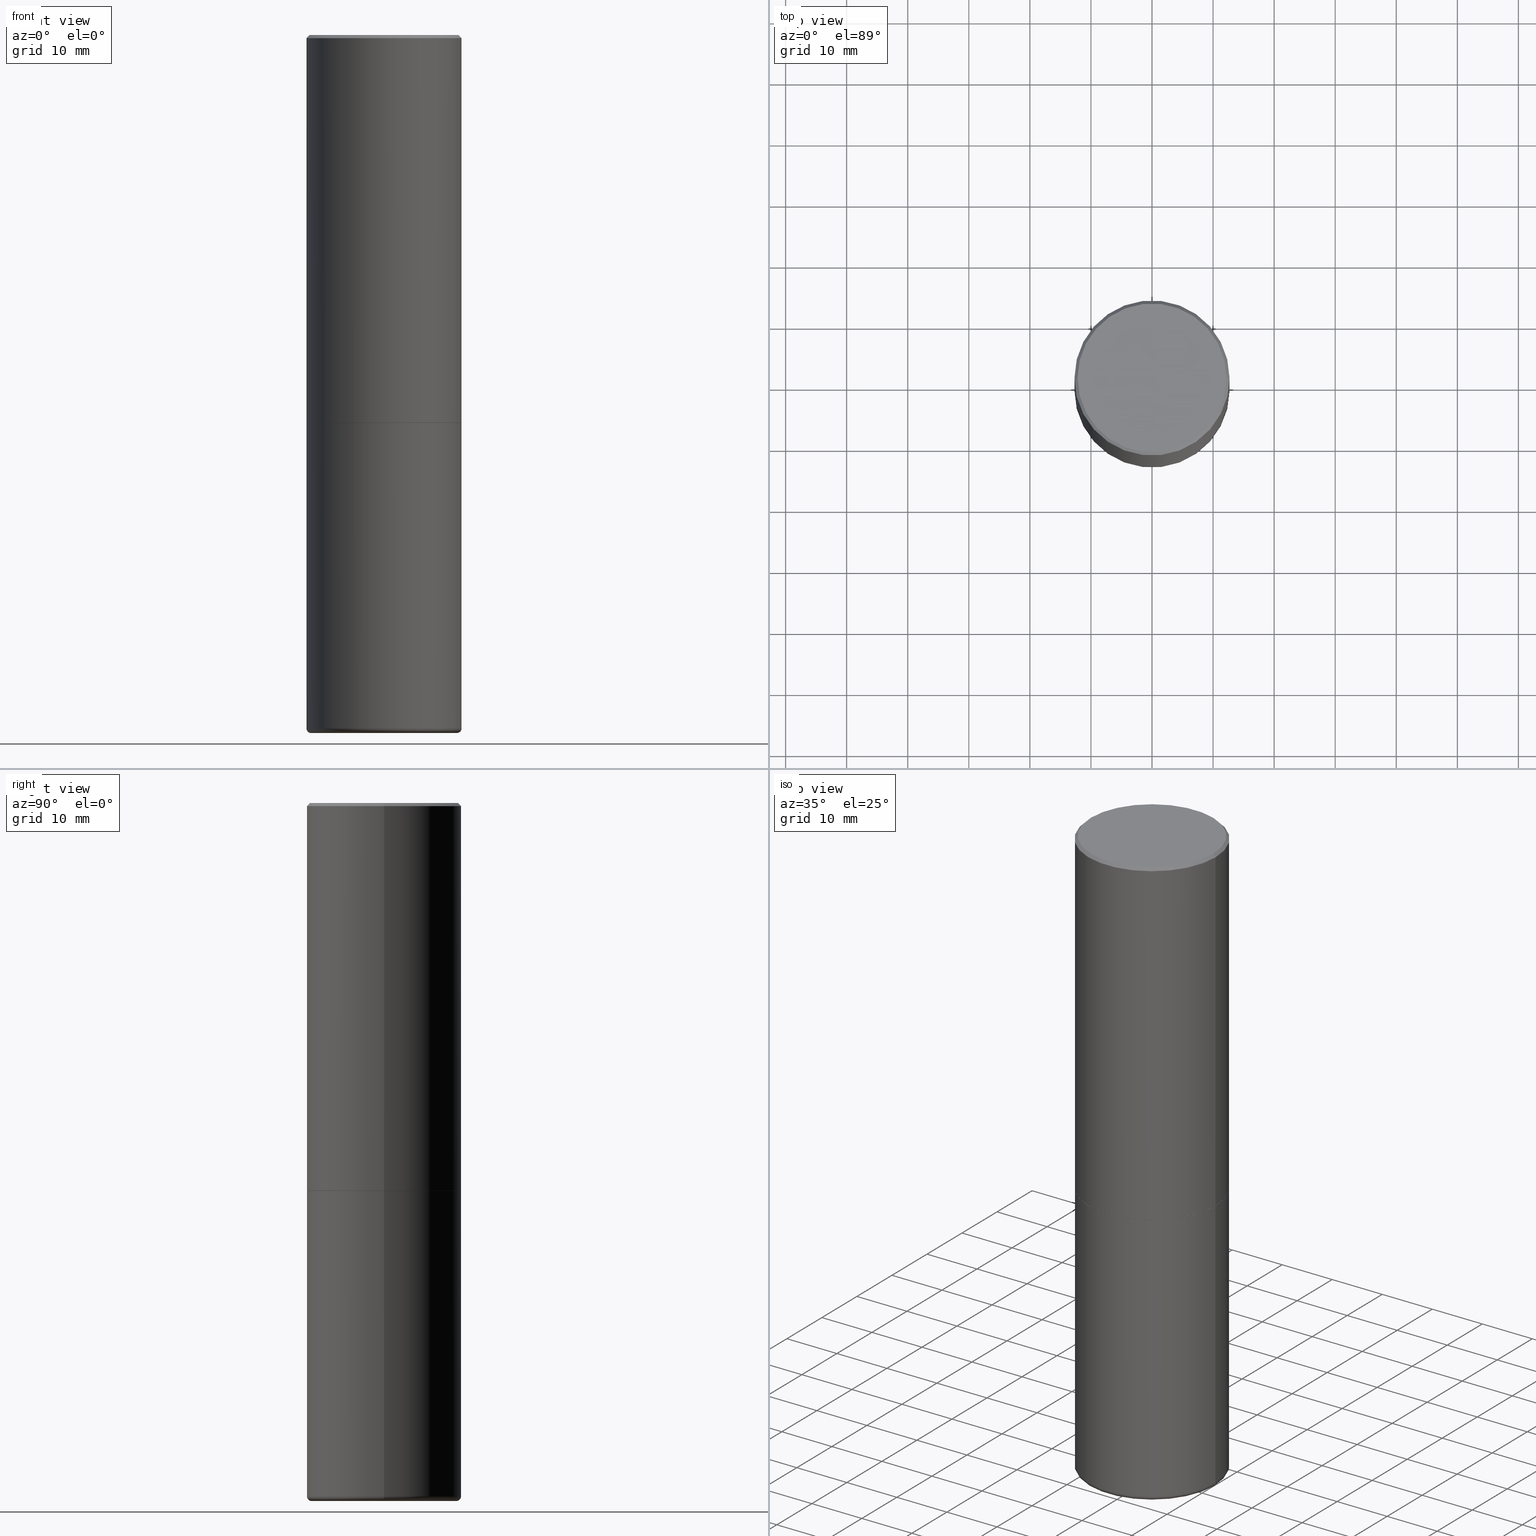
[diagram: canonical four-view strip — front | top / right | iso, engineering-drawing reading convention]
A machine part, canonical four-view strip (front | top / right | iso — engineering-drawing reading convention). The complete STEP part file that produces these views, byte-faithful:
ISO-10303-21;
HEADER;
FILE_DESCRIPTION (( 'STEP AP203' ),
    '1' );
FILE_NAME ('37303.STEP',
    '2024-03-01T23:32:27',
    ( '' ),
    ( '' ),
    'SwSTEP 2.0',
    'SolidWorks 2023',
    '' );
FILE_SCHEMA (( 'CONFIG_CONTROL_DESIGN' ));
ENDSEC;

DATA;
#1 = CARTESIAN_POINT ( 'NONE',  ( -0.4999999999999999445, 3.421651712066269663E-15, -0.02000000000000010797 ) ) ;
#2 = CARTESIAN_POINT ( 'NONE',  ( 0.5000000000000000000, -1.222018468595099830E-14, -2.500000000000000000 ) ) ;
#3 = CIRCLE ( 'NONE', #129, 0.4989999999999999991 ) ;
#4 = CIRCLE ( 'NONE', #410, 0.4999999999999999445 ) ;
#5 = MANIFOLD_SOLID_BREP ( 'Body-Move/Copy2[2]', #162 ) ;
#6 = ORIENTED_EDGE ( 'NONE', *, *, #290, .T. ) ;
#7 = CC_DESIGN_PERSON_AND_ORGANIZATION_ASSIGNMENT ( #189, #221, ( #294 ) ) ;
#8 = CARTESIAN_POINT ( 'NONE',  ( -0.4700000000000000289, -1.221316153627502519E-14, -4.499999999999999112 ) ) ;
#9 = VERTEX_POINT ( 'NONE', #151 ) ;
#10 = DIRECTION ( 'NONE',  ( -2.445468806185136597E-29, 3.491481338843145583E-15, 1.000000000000000000 ) ) ;
#11 = ORIENTED_EDGE ( 'NONE', *, *, #324, .T. ) ;
#12 = DIRECTION ( 'NONE',  ( 1.000000000000000000, 0.000000000000000000, 0.000000000000000000 ) ) ;
#13 = EDGE_CURVE ( 'NONE', #9, #168, #374, .T. ) ;
#14 = ORIENTED_EDGE ( 'NONE', *, *, #83, .T. ) ;
#15 = DIRECTION ( 'NONE',  ( 1.000000000000000000, -6.982962677686267499E-15, 4.876176775795935793E-29 ) ) ;
#16 = VERTEX_POINT ( 'NONE', #315 ) ;
#17 = DIRECTION ( 'NONE',  ( 1.000000000000000000, -6.982962677686265922E-15, 4.876176775795935793E-29 ) ) ;
#18 = ORIENTED_EDGE ( 'NONE', *, *, #255, .F. ) ;
#19 = DIRECTION ( 'NONE',  ( -2.445468806185136597E-29, 3.491481338843145583E-15, 1.000000000000000000 ) ) ;
#20 = LINE ( 'NONE', #273, #54 ) ;
#21 = CIRCLE ( 'NONE', #169, 0.4989999999999999991 ) ;
#22 = AXIS2_PLACEMENT_3D ( 'NONE', #209, #140, #372 ) ;
#23 = EDGE_CURVE ( 'NONE', #16, #231, #401, .T. ) ;
#24 = CARTESIAN_POINT ( 'NONE',  ( 6.113672015462842613E-29, -8.728703347107864943E-15, -2.500000000000000000 ) ) ;
#25 = VERTEX_POINT ( 'NONE', #58 ) ;
#26 = PERSON_AND_ORGANIZATION ( #50, #116 ) ;
#27 = DIRECTION ( 'NONE',  ( 2.438088387897960049E-29, -3.491481338843145188E-15, -1.000000000000000000 ) ) ;
#28 = APPROVAL_STATUS ( 'not_yet_approved' ) ;
#29 = DIRECTION ( 'NONE',  ( 0.7071067811865455743, -7.319954787623248157E-15, -0.7071067811865493491 ) ) ;
#30 = AXIS2_PLACEMENT_3D ( 'NONE', #60, #101, #160 ) ;
#31 = AXIS2_PLACEMENT_3D ( 'NONE', #67, #288, #326 ) ;
#32 = DATE_AND_TIME ( #154, #100 ) ;
#33 = PERSON_AND_ORGANIZATION ( #50, #116 ) ;
#34 = CC_DESIGN_PERSON_AND_ORGANIZATION_ASSIGNMENT ( #149, #86, ( #294 ) ) ;
#35 = DIRECTION ( 'NONE',  ( -0.7071067811865455743, 2.468850131082236945E-15, -0.7071067811865493491 ) ) ;
#36 = DIRECTION ( 'NONE',  ( -1.000000000000000000, 6.982962677686265922E-15, -4.876176775795935793E-29 ) ) ;
#37 = EDGE_CURVE ( 'NONE', #337, #369, #205, .T. ) ;
#38 = FACE_OUTER_BOUND ( 'NONE', #243, .T. ) ;
#39 = VECTOR ( 'NONE', #174, 39.37007874015748143 ) ;
#40 = ORIENTED_EDGE ( 'NONE', *, *, #13, .T. ) ;
#41 = DIRECTION ( 'NONE',  ( 1.000000000000000000, -6.982962677686270655E-15, 0.000000000000000000 ) ) ;
#42 = ORIENTED_EDGE ( 'NONE', *, *, #83, .F. ) ;
#43 = ORIENTED_EDGE ( 'NONE', *, *, #127, .F. ) ;
#44 =( NAMED_UNIT ( * ) SI_UNIT ( $, .STERADIAN. ) SOLID_ANGLE_UNIT ( ) );
#45 = AXIS2_PLACEMENT_3D ( 'NONE', #245, #89, #248 ) ;
#46 = ORIENTED_EDGE ( 'NONE', *, *, #275, .F. ) ;
#47 = DIRECTION ( 'NONE',  ( 1.000000000000000000, -6.982962677686267499E-15, 4.876176775795935793E-29 ) ) ;
#48 = VERTEX_POINT ( 'NONE', #117 ) ;
#49 = DIRECTION ( 'NONE',  ( -2.445468806185136597E-29, 3.491481338843145583E-15, 1.000000000000000000 ) ) ;
#50 = PERSON ( 'UNSPECIFIED', 'UNSPECIFIED', 'UNSPECIFIED', ('UNSPECIFIED'), ('UNSPECIFIED'), ('UNSPECIFIED') ) ;
#51 = CARTESIAN_POINT ( 'NONE',  ( 1.093124556364756005E-28, -1.560692158462886037E-14, -4.469999999999999751 ) ) ;
#52 = DIRECTION ( 'NONE',  ( 1.000000000000000000, -6.982962677686266711E-15, 0.000000000000000000 ) ) ;
#53 = EDGE_LOOP ( 'NONE', ( #109, #111, #254, #113 ) ) ;
#54 = VECTOR ( 'NONE', #183, 39.37007874015748143 ) ;
#55 = APPROVAL_PERSON_ORGANIZATION ( #250, #135, #411 ) ;
#56 = DIRECTION ( 'NONE',  ( -2.445468806185136597E-29, 3.491481338843145583E-15, 1.000000000000000000 ) ) ;
#57 = EDGE_CURVE ( 'NONE', #25, #369, #309, .T. ) ;
#58 = CARTESIAN_POINT ( 'NONE',  ( -0.4999999999999998335, -1.205420790582835944E-14, -4.469999999999999751 ) ) ;
#59 = DATE_TIME_ROLE ( 'classification_date' ) ;
#60 = CARTESIAN_POINT ( 'NONE',  ( 0.000000000000000000, 0.000000000000000000, 0.000000000000000000 ) ) ;
#61 = AXIS2_PLACEMENT_3D ( 'NONE', #391, #289, #330 ) ;
#62 = VECTOR ( 'NONE', #35, 39.37007874015748854 ) ;
#63 = APPROVAL_DATE_TIME ( #319, #269 ) ;
#64 = ADVANCED_FACE ( 'NONE', ( #346 ), #246, .T. ) ;
#65 = AXIS2_PLACEMENT_3D ( 'NONE', #123, #216, #251 ) ;
#66 = DIRECTION ( 'NONE',  ( 1.000000000000000000, -6.982962677686266711E-15, 0.000000000000000000 ) ) ;
#67 = CARTESIAN_POINT ( 'NONE',  ( 1.093124556364756005E-28, -1.560692158462886037E-14, -4.469999999999999751 ) ) ;
#68 = CARTESIAN_POINT ( 'NONE',  ( 6.113672015462842613E-29, -8.728703347107864943E-15, -2.500000000000000000 ) ) ;
#69 = ORIENTED_EDGE ( 'NONE', *, *, #37, .T. ) ;
#70 = DIRECTION ( 'NONE',  ( 2.438088387897960049E-29, -3.491481338843145188E-15, -1.000000000000000000 ) ) ;
#71 = AXIS2_PLACEMENT_3D ( 'NONE', #78, #394, #241 ) ;
#72 = ORIENTED_EDGE ( 'NONE', *, *, #57, .F. ) ;
#73 = PLANE ( 'NONE',  #317 ) ;
#74 = ORIENTED_EDGE ( 'NONE', *, *, #197, .F. ) ;
#75 = ADVANCED_FACE ( 'NONE', ( #375 ), #91, .T. ) ;
#76 = FACE_OUTER_BOUND ( 'NONE', #296, .T. ) ;
#77 = EDGE_LOOP ( 'NONE', ( #14, #136, #266, #74 ) ) ;
#78 = CARTESIAN_POINT ( 'NONE',  ( -0.4700000000000000289, -1.226737072655638969E-14, -4.469999999999999751 ) ) ;
#79 = CONICAL_SURFACE ( 'NONE', #274, 0.4989999999999999991, 0.7853981633976873100 ) ;
#80 = AXIS2_PLACEMENT_3D ( 'NONE', #161, #291, #128 ) ;
#81 = EDGE_LOOP ( 'NONE', ( #167, #133 ) ) ;
#82 = CYLINDRICAL_SURFACE ( 'NONE', #344, 0.5000000000000001110 ) ;
#83 = EDGE_CURVE ( 'NONE', #168, #48, #409, .T. ) ;
#84 = DIRECTION ( 'NONE',  ( 2.445468806185136597E-29, -3.491481338843145583E-15, -1.000000000000000000 ) ) ;
#85 = ORIENTED_EDGE ( 'NONE', *, *, #260, .T. ) ;
#86 = PERSON_AND_ORGANIZATION_ROLE ( 'creator' ) ;
#87 = DIRECTION ( 'NONE',  ( 1.000000000000000000, -6.982962677686262766E-15, 0.000000000000000000 ) ) ;
#88 = CC_DESIGN_APPROVAL ( #269, ( #402 ) ) ;
#89 = DIRECTION ( 'NONE',  ( -2.445468806185136597E-29, 3.491481338843145583E-15, 1.000000000000000000 ) ) ;
#90 = DATE_AND_TIME ( #351, #177 ) ;
#91 = PLANE ( 'NONE',  #232 ) ;
#92 = DATE_TIME_ROLE ( 'creation_date' ) ;
#93 = AXIS2_PLACEMENT_3D ( 'NONE', #159, #70, #263 ) ;
#94 = CC_DESIGN_APPROVAL ( #135, ( #294 ) ) ;
#95 = ADVANCED_FACE ( 'NONE', ( #278 ), #79, .T. ) ;
#96 = FACE_OUTER_BOUND ( 'NONE', #398, .T. ) ;
#97 = CLOSED_SHELL ( 'NONE', ( #413, #179, #193, #228, #300, #75 ) ) ;
#98 = APPROVAL ( #28, 'UNSPECIFIED' ) ;
#99 = ADVANCED_BREP_SHAPE_REPRESENTATION ( '37303', ( #144, #5, #371 ), #268 ) ;
#100 = LOCAL_TIME ( 18, 32, 27.00000000000000000, #182 ) ;
#101 = DIRECTION ( 'NONE',  ( -2.445468806185136597E-29, 3.491481338843145583E-15, 1.000000000000000000 ) ) ;
#102 = DIRECTION ( 'NONE',  ( -2.445468806185136877E-29, 3.491481338843145188E-15, 1.000000000000000000 ) ) ;
#103 = ORIENTED_EDGE ( 'NONE', *, *, #255, .T. ) ;
#104 = CYLINDRICAL_SURFACE ( 'NONE', #30, 0.5000000000000000000 ) ;
#105 = ORIENTED_EDGE ( 'NONE', *, *, #13, .F. ) ;
#106 = TOROIDAL_SURFACE ( 'NONE', #286, 0.4700000000000000289, 0.02999999999999967970 ) ;
#107 = CARTESIAN_POINT ( 'NONE',  ( 0.5000000000000001110, -3.491481338843134539E-15, 2.438088387897968457E-29 ) ) ;
#108 = EDGE_CURVE ( 'NONE', #131, #337, #20, .T. ) ;
#109 = ORIENTED_EDGE ( 'NONE', *, *, #23, .F. ) ;
#110 = CARTESIAN_POINT ( 'NONE',  ( -0.5000000000000000000, -8.615098787067861728E-15, -2.500000000000000000 ) ) ;
#111 = ORIENTED_EDGE ( 'NONE', *, *, #114, .T. ) ;
#112 = PERSON_AND_ORGANIZATION ( #50, #116 ) ;
#113 = ORIENTED_EDGE ( 'NONE', *, *, #324, .F. ) ;
#114 = EDGE_CURVE ( 'NONE', #16, #264, #120, .T. ) ;
#115 = DIRECTION ( 'NONE',  ( -2.438088387897960049E-29, 3.491481338843145188E-15, 1.000000000000000000 ) ) ;
#116 = ORGANIZATION ( 'UNSPECIFIED', 'UNSPECIFIED', '' ) ;
#117 = CARTESIAN_POINT ( 'NONE',  ( -0.5000000000000002220, -8.448070674724393209E-16, -2.499000000000000110 ) ) ;
#118 = FACE_OUTER_BOUND ( 'NONE', #172, .T. ) ;
#119 = DIRECTION ( 'NONE',  ( 0.000000000000000000, 0.000000000000000000, 1.000000000000000000 ) ) ;
#120 = LINE ( 'NONE', #147, #287 ) ;
#121 = CARTESIAN_POINT ( 'NONE',  ( 6.111226546656657010E-29, -8.725211865769021935E-15, -2.499000000000000110 ) ) ;
#122 = COORDINATED_UNIVERSAL_TIME_OFFSET ( 5, 0, .BEHIND. ) ;
#123 = CARTESIAN_POINT ( 'NONE',  ( 4.890937612370299433E-31, -6.982962677686328587E-17, -0.02000000000000010797 ) ) ;
#124 = SECURITY_CLASSIFICATION_LEVEL ( 'unclassified' ) ;
#125 = LOCAL_TIME ( 18, 32, 27.00000000000000000, #122 ) ;
#126 = DIRECTION ( 'NONE',  ( -2.445468806185136597E-29, 3.491481338843145583E-15, 1.000000000000000000 ) ) ;
#127 = EDGE_CURVE ( 'NONE', #25, #131, #267, .T. ) ;
#128 = DIRECTION ( 'NONE',  ( 1.000000000000000000, -6.982962677686266711E-15, 4.878011538933549282E-29 ) ) ;
#129 = AXIS2_PLACEMENT_3D ( 'NONE', #226, #126, #361 ) ;
#130 = CARTESIAN_POINT ( 'NONE',  ( -0.5000000000000001110, 3.552713678800501718E-15, -2.459467545127453732E-29 ) ) ;
#131 = VERTEX_POINT ( 'NONE', #181 ) ;
#132 = PLANE ( 'NONE',  #93 ) ;
#133 = ORIENTED_EDGE ( 'NONE', *, *, #260, .F. ) ;
#134 = FACE_OUTER_BOUND ( 'NONE', #139, .T. ) ;
#135 = APPROVAL ( #284, 'UNSPECIFIED' ) ;
#136 = ORIENTED_EDGE ( 'NONE', *, *, #203, .T. ) ;
#137 = CARTESIAN_POINT ( 'NONE',  ( -0.4989999999999999991, -5.177796641316741831E-15, -2.500000000000000000 ) ) ;
#138 = TOROIDAL_SURFACE ( 'NONE', #392, 0.4700000000000000289, 0.02999999999999967970 ) ;
#139 = EDGE_LOOP ( 'NONE', ( #69, #293 ) ) ;
#140 = DIRECTION ( 'NONE',  ( -2.445468806185136597E-29, 3.491481338843145583E-15, 1.000000000000000000 ) ) ;
#141 = ORIENTED_EDGE ( 'NONE', *, *, #108, .T. ) ;
#142 = CYLINDRICAL_SURFACE ( 'NONE', #22, 0.5000000000000000000 ) ;
#143 = CARTESIAN_POINT ( 'NONE',  ( -0.5000000000000000000, 3.552713678800500929E-15, -2.459467545127452891E-29 ) ) ;
#144 = MANIFOLD_SOLID_BREP ( 'Body-Move/Copy2[1]', #97 ) ;
#145 = CARTESIAN_POINT ( 'NONE',  ( 4.890937612370299433E-31, -6.982962677686328587E-17, -0.02000000000000010797 ) ) ;
#146 = CC_DESIGN_SECURITY_CLASSIFICATION ( #402, ( #294 ) ) ;
#147 = CARTESIAN_POINT ( 'NONE',  ( 0.4999999999999999445, -3.500078625662628685E-15, -0.02000000000000010797 ) ) ;
#148 = CARTESIAN_POINT ( 'NONE',  ( 4.890937612370299433E-31, -6.982962677686328587E-17, -0.02000000000000010797 ) ) ;
#149 = PERSON_AND_ORGANIZATION ( #50, #116 ) ;
#150 = EDGE_CURVE ( 'NONE', #328, #264, #282, .T. ) ;
#151 = CARTESIAN_POINT ( 'NONE',  ( 0.4989999999999999991, -1.221320172327331228E-14, -2.500000000000000000 ) ) ;
#152 = PERSON_AND_ORGANIZATION_ROLE ( 'classification_officer' ) ;
#153 = CARTESIAN_POINT ( 'NONE',  ( 1.093124556364756005E-28, -1.560692158462886037E-14, -4.469999999999999751 ) ) ;
#154 = CALENDAR_DATE ( 2024, 1, 3 ) ;
#155 = CC_DESIGN_DATE_AND_TIME_ASSIGNMENT ( #32, #92, ( #224 ) ) ;
#156 = APPROVAL_ROLE ( '' ) ;
#157 = CIRCLE ( 'NONE', #80, 0.4800000000000000933 ) ;
#158 = UNCERTAINTY_MEASURE_WITH_UNIT (LENGTH_MEASURE( 1.000000000000000082E-05 ), #211, 'distance_accuracy_value', 'NONE');
#159 = CARTESIAN_POINT ( 'NONE',  ( 6.113672015462842613E-29, -8.728703347107864943E-15, -2.500000000000000000 ) ) ;
#160 = DIRECTION ( 'NONE',  ( 1.000000000000000000, -6.982962677686266711E-15, 4.876176775795935793E-29 ) ) ;
#161 = CARTESIAN_POINT ( 'NONE',  ( 3.549094808739746881E-45, -5.067166779293519988E-31, -1.451294246634139896E-16 ) ) ;
#162 = CLOSED_SHELL ( 'NONE', ( #320, #380, #64, #186, #355, #95, #405, #249 ) ) ;
#163 = LOCAL_TIME ( 18, 32, 27.00000000000000000, #190 ) ;
#164 = FACE_OUTER_BOUND ( 'NONE', #223, .T. ) ;
#165 = ORIENTED_EDGE ( 'NONE', *, *, #150, .F. ) ;
#166 = LINE ( 'NONE', #234, #62 ) ;
#167 = ORIENTED_EDGE ( 'NONE', *, *, #213, .F. ) ;
#168 = VERTEX_POINT ( 'NONE', #314 ) ;
#169 = AXIS2_PLACEMENT_3D ( 'NONE', #68, #10, #261 ) ;
#170 = APPLICATION_PROTOCOL_DEFINITION ( 'international standard', 'config_control_design', 1994, #342 ) ;
#171 = CC_DESIGN_PERSON_AND_ORGANIZATION_ASSIGNMENT ( #112, #239, ( #397 ) ) ;
#172 = EDGE_LOOP ( 'NONE', ( #270, #305, #11, #307 ) ) ;
#173 = DIRECTION ( 'NONE',  ( -2.445468806185136597E-29, 3.491481338843145583E-15, 1.000000000000000000 ) ) ;
#174 = DIRECTION ( 'NONE',  ( -2.445468806185136877E-29, 3.491481338843145188E-15, 1.000000000000000000 ) ) ;
#175 = DIRECTION ( 'NONE',  ( -2.445468806185136597E-29, 3.491481338843145583E-15, 1.000000000000000000 ) ) ;
#176 = DIRECTION ( 'NONE',  ( 1.000000000000000000, -6.982962677686269866E-15, 0.000000000000000000 ) ) ;
#177 = LOCAL_TIME ( 18, 32, 27.00000000000000000, #321 ) ;
#178 = ORIENTED_EDGE ( 'NONE', *, *, #203, .F. ) ;
#179 = ADVANCED_FACE ( 'NONE', ( #379 ), #106, .T. ) ;
#180 = APPROVAL_STATUS ( 'not_yet_approved' ) ;
#181 = CARTESIAN_POINT ( 'NONE',  ( 0.4999999999999998335, -1.909840292347199373E-14, -4.469999999999999751 ) ) ;
#182 = COORDINATED_UNIVERSAL_TIME_OFFSET ( 5, 0, .BEHIND. ) ;
#183 = DIRECTION ( 'NONE',  ( -2.445468806185136877E-29, 3.491481338843145188E-15, 1.000000000000000000 ) ) ;
#184 = SHAPE_DEFINITION_REPRESENTATION ( #247, #99 ) ;
#185 = AXIS2_PLACEMENT_3D ( 'NONE', #196, #358, #36 ) ;
#186 = ADVANCED_FACE ( 'NONE', ( #118 ), #327, .T. ) ;
#187 = LINE ( 'NONE', #386, #357 ) ;
#188 = CIRCLE ( 'NONE', #71, 0.02999999999999967970 ) ;
#189 = PERSON_AND_ORGANIZATION ( #50, #116 ) ;
#190 = COORDINATED_UNIVERSAL_TIME_OFFSET ( 5, 0, .BEHIND. ) ;
#191 = AXIS2_PLACEMENT_3D ( 'NONE', #121, #341, #408 ) ;
#192 = LOCAL_TIME ( 18, 32, 27.00000000000000000, #313 ) ;
#193 = ADVANCED_FACE ( 'NONE', ( #134 ), #132, .F. ) ;
#194 = FACE_OUTER_BOUND ( 'NONE', #395, .T. ) ;
#195 = CARTESIAN_POINT ( 'NONE',  ( 1.100460962783311244E-28, -1.571166602479415374E-14, -4.499999999999999112 ) ) ;
#196 = CARTESIAN_POINT ( 'NONE',  ( 3.351822085289408337E-15, 0.4800000000000000933, -1.748475754976417141E-15 ) ) ;
#197 = EDGE_CURVE ( 'NONE', #168, #264, #297, .T. ) ;
#198 = ORIENTED_EDGE ( 'NONE', *, *, #219, .F. ) ;
#199 = CARTESIAN_POINT ( 'NONE',  ( -0.4800000000000000933, 3.386736898677838802E-15, -1.451294246634375569E-16 ) ) ;
#200 = EDGE_LOOP ( 'NONE', ( #103, #360, #335, #390 ) ) ;
#201 =( NAMED_UNIT ( * ) PLANE_ANGLE_UNIT ( ) SI_UNIT ( $, .RADIAN. ) );
#202 = ORIENTED_EDGE ( 'NONE', *, *, #23, .T. ) ;
#203 = EDGE_CURVE ( 'NONE', #48, #328, #388, .T. ) ;
#204 = ORIENTED_EDGE ( 'NONE', *, *, #219, .T. ) ;
#205 = CIRCLE ( 'NONE', #415, 0.5000000000000000000 ) ;
#206 =( LENGTH_UNIT ( ) NAMED_UNIT ( * ) SI_UNIT ( $, .METRE. ) );
#207 = CIRCLE ( 'NONE', #352, 0.5000000000000002220 ) ;
#208 = ORIENTED_EDGE ( 'NONE', *, *, #418, .T. ) ;
#209 = CARTESIAN_POINT ( 'NONE',  ( 0.000000000000000000, 0.000000000000000000, 0.000000000000000000 ) ) ;
#210 = DIRECTION ( 'NONE',  ( -1.000000000000000000, 6.982962677686266711E-15, 0.000000000000000000 ) ) ;
#211 =( CONVERSION_BASED_UNIT ( 'INCH', #403 ) LENGTH_UNIT ( ) NAMED_UNIT ( #353 ) );
#212 = CARTESIAN_POINT ( 'NONE',  ( 1.465753586672304986E-28, -1.048046773905407619E-14, -4.499999999999999112 ) ) ;
#213 = EDGE_CURVE ( 'NONE', #9, #367, #21, .T. ) ;
#214 = CALENDAR_DATE ( 2024, 1, 3 ) ;
#215 = CIRCLE ( 'NONE', #259, 0.02999999999999967970 ) ;
#216 = DIRECTION ( 'NONE',  ( -2.445468806185136597E-29, 3.491481338843145583E-15, 1.000000000000000000 ) ) ;
#217 = DIRECTION ( 'NONE',  ( 0.7071067811867165487, -2.468850131084027659E-15, 0.7071067811863784858 ) ) ;
#218 = DATE_AND_TIME ( #414, #192 ) ;
#219 = EDGE_CURVE ( 'NONE', #367, #48, #187, .T. ) ;
#220 = CARTESIAN_POINT ( 'NONE',  ( 0.4989999999999999991, -1.221320172327331228E-14, -2.500000000000000000 ) ) ;
#221 = PERSON_AND_ORGANIZATION_ROLE ( 'design_supplier' ) ;
#222 = APPROVAL_PERSON_ORGANIZATION ( #279, #269, #407 ) ;
#223 = EDGE_LOOP ( 'NONE', ( #178, #208, #298, #165 ) ) ;
#224 = PRODUCT_DEFINITION ( 'UNKNOWN', '', #294, #354 ) ;
#225 = CARTESIAN_POINT ( 'NONE',  ( 6.113672015462842613E-29, -8.728703347107864943E-15, -2.500000000000000000 ) ) ;
#226 = CARTESIAN_POINT ( 'NONE',  ( 6.113672015462842613E-29, -8.728703347107864943E-15, -2.500000000000000000 ) ) ;
#227 = CARTESIAN_POINT ( 'NONE',  ( 0.4999999999999999445, -3.500078625662628685E-15, -0.02000000000000010797 ) ) ;
#228 = ADVANCED_FACE ( 'NONE', ( #194 ), #104, .T. ) ;
#229 = EDGE_LOOP ( 'NONE', ( #334, #202 ) ) ;
#230 = DIRECTION ( 'NONE',  ( 1.000000000000000000, -6.982962677686270655E-15, 0.000000000000000000 ) ) ;
#231 = VERTEX_POINT ( 'NONE', #199 ) ;
#232 = AXIS2_PLACEMENT_3D ( 'NONE', #212, #27, #281 ) ;
#233 = AXIS2_PLACEMENT_3D ( 'NONE', #225, #417, #66 ) ;
#234 = CARTESIAN_POINT ( 'NONE',  ( -0.4999999999999999445, 3.421651712066269663E-15, -0.02000000000000010797 ) ) ;
#235 = ORIENTED_EDGE ( 'NONE', *, *, #213, .T. ) ;
#236 = CC_DESIGN_PERSON_AND_ORGANIZATION_ASSIGNMENT ( #26, #152, ( #402 ) ) ;
#237 = DIRECTION ( 'NONE',  ( -2.445468806185136597E-29, 3.491481338843145583E-15, 1.000000000000000000 ) ) ;
#238 = EDGE_LOOP ( 'NONE', ( #18, #271 ) ) ;
#239 = PERSON_AND_ORGANIZATION_ROLE ( 'design_owner' ) ;
#240 = VERTEX_POINT ( 'NONE', #8 ) ;
#241 = DIRECTION ( 'NONE',  ( -1.000000000000000000, 7.105427357601001859E-15, 0.000000000000000000 ) ) ;
#242 = CIRCLE ( 'NONE', #329, 0.4700000000000000289 ) ;
#243 = EDGE_LOOP ( 'NONE', ( #331, #377, #373, #43 ) ) ;
#244 = DIRECTION ( 'NONE',  ( 2.445468806185136597E-29, -3.491481338843145583E-15, -1.000000000000000000 ) ) ;
#245 = CARTESIAN_POINT ( 'NONE',  ( 3.549094808739746881E-45, -5.067166779293519988E-31, -1.451294246634139896E-16 ) ) ;
#246 = CONICAL_SURFACE ( 'NONE', #310, 0.4999999999999999445, 0.7853981633974456145 ) ;
#247 = PRODUCT_DEFINITION_SHAPE ( 'NONE', 'NONE',  #224 ) ;
#248 = DIRECTION ( 'NONE',  ( 1.000000000000000000, -6.982962677686266711E-15, 4.878011538933549282E-29 ) ) ;
#249 = ADVANCED_FACE ( 'NONE', ( #359 ), #265, .F. ) ;
#250 = PERSON_AND_ORGANIZATION ( #50, #116 ) ;
#251 = DIRECTION ( 'NONE',  ( 1.000000000000000000, -6.982962677686266711E-15, 0.000000000000000000 ) ) ;
#252 = CALENDAR_DATE ( 2024, 1, 3 ) ;
#253 = AXIS2_PLACEMENT_3D ( 'NONE', #340, #237, #15 ) ;
#254 = ORIENTED_EDGE ( 'NONE', *, *, #389, .T. ) ;
#255 = EDGE_CURVE ( 'NONE', #365, #240, #384, .T. ) ;
#256 = DIRECTION ( 'NONE',  ( -2.445468806185136597E-29, 3.491481338843145583E-15, 1.000000000000000000 ) ) ;
#257 = DIRECTION ( 'NONE',  ( -2.445468806185136877E-29, 3.491481338843145188E-15, 1.000000000000000000 ) ) ;
#258 = AXIS2_PLACEMENT_3D ( 'NONE', #318, #382, #230 ) ;
#259 = AXIS2_PLACEMENT_3D ( 'NONE', #311, #272, #306 ) ;
#260 = EDGE_CURVE ( 'NONE', #367, #9, #3, .T. ) ;
#261 = DIRECTION ( 'NONE',  ( 1.000000000000000000, -6.982962677686266711E-15, 0.000000000000000000 ) ) ;
#262 = ORIENTED_EDGE ( 'NONE', *, *, #57, .T. ) ;
#263 = DIRECTION ( 'NONE',  ( -1.000000000000000000, 6.982962677686265922E-15, -4.876176775795935793E-29 ) ) ;
#264 = VERTEX_POINT ( 'NONE', #227 ) ;
#265 = PLANE ( 'NONE',  #185 ) ;
#266 = ORIENTED_EDGE ( 'NONE', *, *, #389, .F. ) ;
#267 = CIRCLE ( 'NONE', #336, 0.5000000000000000000 ) ;
#268 =( GEOMETRIC_REPRESENTATION_CONTEXT ( 3 ) GLOBAL_UNCERTAINTY_ASSIGNED_CONTEXT ( ( #158 ) ) GLOBAL_UNIT_ASSIGNED_CONTEXT ( ( #211, #201, #44 ) ) REPRESENTATION_CONTEXT ( 'NONE', 'WORKASPACE' ) );
#269 = APPROVAL ( #180, 'UNSPECIFIED' ) ;
#270 = ORIENTED_EDGE ( 'NONE', *, *, #114, .F. ) ;
#271 = ORIENTED_EDGE ( 'NONE', *, *, #308, .F. ) ;
#272 = DIRECTION ( 'NONE',  ( -6.982962677686266711E-15, -1.000000000000000000, 3.491481338843145583E-15 ) ) ;
#273 = CARTESIAN_POINT ( 'NONE',  ( 0.5000000000000000000, -3.491481338843133355E-15, 2.438088387897967896E-29 ) ) ;
#274 = AXIS2_PLACEMENT_3D ( 'NONE', #350, #406, #348 ) ;
#275 = EDGE_CURVE ( 'NONE', #369, #337, #370, .T. ) ;
#276 = FACE_OUTER_BOUND ( 'NONE', #77, .T. ) ;
#277 = APPLICATION_CONTEXT ( 'configuration controlled 3d designs of mechanical parts and assemblies' ) ;
#278 = FACE_OUTER_BOUND ( 'NONE', #301, .T. ) ;
#279 = PERSON_AND_ORGANIZATION ( #50, #116 ) ;
#280 = PRODUCT_RELATED_PRODUCT_CATEGORY ( 'detail', '', ( #397 ) ) ;
#281 = DIRECTION ( 'NONE',  ( -1.000000000000000000, 6.982962677686265922E-15, -4.876176775795935793E-29 ) ) ;
#282 = CIRCLE ( 'NONE', #65, 0.4999999999999999445 ) ;
#283 = DIRECTION ( 'NONE',  ( -2.445468806185136597E-29, 3.491481338843145583E-15, 1.000000000000000000 ) ) ;
#284 = APPROVAL_STATUS ( 'not_yet_approved' ) ;
#285 = PERSON_AND_ORGANIZATION_ROLE ( 'creator' ) ;
#286 = AXIS2_PLACEMENT_3D ( 'NONE', #51, #175, #404 ) ;
#287 = VECTOR ( 'NONE', #29, 39.37007874015748854 ) ;
#288 = DIRECTION ( 'NONE',  ( -2.445468806185136597E-29, 3.491481338843145583E-15, 1.000000000000000000 ) ) ;
#289 = DIRECTION ( 'NONE',  ( -2.445468806185136597E-29, 3.491481338843145583E-15, 1.000000000000000000 ) ) ;
#290 = EDGE_CURVE ( 'NONE', #131, #25, #292, .T. ) ;
#291 = DIRECTION ( 'NONE',  ( -2.445468806185136597E-29, 3.491481338843145583E-15, 1.000000000000000000 ) ) ;
#292 = CIRCLE ( 'NONE', #31, 0.5000000000000000000 ) ;
#293 = ORIENTED_EDGE ( 'NONE', *, *, #275, .T. ) ;
#294 = PRODUCT_DEFINITION_FORMATION_WITH_SPECIFIED_SOURCE ( 'ANY', '', #397, .NOT_KNOWN. ) ;
#295 = CARTESIAN_POINT ( 'NONE',  ( 1.093124556364756005E-28, -1.560692158462886037E-14, -4.469999999999999751 ) ) ;
#296 = EDGE_LOOP ( 'NONE', ( #6, #262, #363, #387 ) ) ;
#297 = LINE ( 'NONE', #107, #343 ) ;
#298 = ORIENTED_EDGE ( 'NONE', *, *, #197, .T. ) ;
#299 = CARTESIAN_POINT ( 'NONE',  ( 0.000000000000000000, 0.000000000000000000, 0.000000000000000000 ) ) ;
#300 = ADVANCED_FACE ( 'NONE', ( #38 ), #138, .T. ) ;
#301 = EDGE_LOOP ( 'NONE', ( #198, #85, #40, #393 ) ) ;
#302 = AXIS2_PLACEMENT_3D ( 'NONE', #339, #244, #383 ) ;
#303 = CC_DESIGN_APPROVAL ( #98, ( #224 ) ) ;
#304 = MECHANICAL_CONTEXT ( 'NONE', #342, 'mechanical' ) ;
#305 = ORIENTED_EDGE ( 'NONE', *, *, #332, .F. ) ;
#306 = DIRECTION ( 'NONE',  ( 1.000000000000000000, -6.982962677686213068E-15, 0.000000000000000000 ) ) ;
#307 = ORIENTED_EDGE ( 'NONE', *, *, #150, .T. ) ;
#308 = EDGE_CURVE ( 'NONE', #240, #365, #242, .T. ) ;
#309 = LINE ( 'NONE', #143, #39 ) ;
#310 = AXIS2_PLACEMENT_3D ( 'NONE', #148, #84, #210 ) ;
#311 = CARTESIAN_POINT ( 'NONE',  ( 0.4700000000000000289, -1.888891404314141014E-14, -4.469999999999999751 ) ) ;
#312 = DIRECTION ( 'NONE',  ( 1.000000000000000000, -6.982962677686269077E-15, 0.000000000000000000 ) ) ;
#313 = COORDINATED_UNIVERSAL_TIME_OFFSET ( 5, 0, .BEHIND. ) ;
#314 = CARTESIAN_POINT ( 'NONE',  ( 0.5000000000000002220, -1.221669320461215845E-14, -2.499000000000000110 ) ) ;
#315 = CARTESIAN_POINT ( 'NONE',  ( 0.4800000000000000933, -3.396558832296482099E-15, -1.451294246633903978E-16 ) ) ;
#316 = PERSON_AND_ORGANIZATION ( #50, #116 ) ;
#317 = AXIS2_PLACEMENT_3D ( 'NONE', #24, #115, #17 ) ;
#318 = CARTESIAN_POINT ( 'NONE',  ( 1.100460962783311244E-28, -1.571166602479415374E-14, -4.499999999999999112 ) ) ;
#319 = DATE_AND_TIME ( #252, #163 ) ;
#320 = ADVANCED_FACE ( 'NONE', ( #96 ), #385, .T. ) ;
#321 = COORDINATED_UNIVERSAL_TIME_OFFSET ( 5, 0, .BEHIND. ) ;
#322 = VECTOR ( 'NONE', #217, 39.37007874015748143 ) ;
#323 = DIRECTION ( 'NONE',  ( -2.445468806185136597E-29, 3.491481338843145583E-15, 1.000000000000000000 ) ) ;
#324 = EDGE_CURVE ( 'NONE', #231, #328, #166, .T. ) ;
#325 = DIRECTION ( 'NONE',  ( -0.7071067811867165487, 7.493145998870964739E-15, 0.7071067811863784858 ) ) ;
#326 = DIRECTION ( 'NONE',  ( 1.000000000000000000, -6.982962677686262766E-15, 0.000000000000000000 ) ) ;
#327 = CONICAL_SURFACE ( 'NONE', #302, 0.4999999999999999445, 0.7853981633974456145 ) ;
#328 = VERTEX_POINT ( 'NONE', #1 ) ;
#329 = AXIS2_PLACEMENT_3D ( 'NONE', #195, #256, #41 ) ;
#330 = DIRECTION ( 'NONE',  ( 1.000000000000000000, -6.982962677686269077E-15, 0.000000000000000000 ) ) ;
#331 = ORIENTED_EDGE ( 'NONE', *, *, #362, .F. ) ;
#332 = EDGE_CURVE ( 'NONE', #231, #16, #157, .T. ) ;
#333 = CARTESIAN_POINT ( 'NONE',  ( 0.4700000000000000289, -1.899365848330670036E-14, -4.499999999999999112 ) ) ;
#334 = ORIENTED_EDGE ( 'NONE', *, *, #332, .T. ) ;
#335 = ORIENTED_EDGE ( 'NONE', *, *, #290, .F. ) ;
#336 = AXIS2_PLACEMENT_3D ( 'NONE', #153, #283, #87 ) ;
#337 = VERTEX_POINT ( 'NONE', #2 ) ;
#338 = CARTESIAN_POINT ( 'NONE',  ( 6.111226546656657010E-29, -8.725211865769021935E-15, -2.499000000000000110 ) ) ;
#339 = CARTESIAN_POINT ( 'NONE',  ( 4.890937612370299433E-31, -6.982962677686328587E-17, -0.02000000000000010797 ) ) ;
#340 = CARTESIAN_POINT ( 'NONE',  ( 0.000000000000000000, 0.000000000000000000, 0.000000000000000000 ) ) ;
#341 = DIRECTION ( 'NONE',  ( -2.445468806185136597E-29, 3.491481338843145583E-15, 1.000000000000000000 ) ) ;
#342 = APPLICATION_CONTEXT ( 'configuration controlled 3d designs of mechanical parts and assemblies' ) ;
#343 = VECTOR ( 'NONE', #257, 39.37007874015748143 ) ;
#344 = AXIS2_PLACEMENT_3D ( 'NONE', #399, #173, #47 ) ;
#345 = APPROVAL_DATE_TIME ( #349, #98 ) ;
#346 = FACE_OUTER_BOUND ( 'NONE', #53, .T. ) ;
#347 = CC_DESIGN_PERSON_AND_ORGANIZATION_ASSIGNMENT ( #33, #285, ( #224 ) ) ;
#348 = DIRECTION ( 'NONE',  ( 1.000000000000000000, -6.982962677686266711E-15, 0.000000000000000000 ) ) ;
#349 = DATE_AND_TIME ( #214, #125 ) ;
#350 = CARTESIAN_POINT ( 'NONE',  ( 6.113672015462842613E-29, -8.728703347107864943E-15, -2.500000000000000000 ) ) ;
#351 = CALENDAR_DATE ( 2024, 1, 3 ) ;
#352 = AXIS2_PLACEMENT_3D ( 'NONE', #338, #49, #176 ) ;
#353 = DIMENSIONAL_EXPONENTS ( 1.000000000000000000, 0.000000000000000000, 0.000000000000000000, 0.000000000000000000, 0.000000000000000000, 0.000000000000000000, 0.000000000000000000 ) ;
#354 = DESIGN_CONTEXT ( 'detailed design', #277, 'design' ) ;
#355 = ADVANCED_FACE ( 'NONE', ( #164 ), #364, .T. ) ;
#356 = DIRECTION ( 'NONE',  ( 1.000000000000000000, -6.982962677686266711E-15, 4.883557194083112901E-29 ) ) ;
#357 = VECTOR ( 'NONE', #325, 39.37007874015748143 ) ;
#358 = DIRECTION ( 'NONE',  ( 2.438088387897960049E-29, -3.491481338843145188E-15, -1.000000000000000000 ) ) ;
#359 = FACE_OUTER_BOUND ( 'NONE', #229, .T. ) ;
#360 = ORIENTED_EDGE ( 'NONE', *, *, #362, .T. ) ;
#361 = DIRECTION ( 'NONE',  ( 1.000000000000000000, -6.982962677686266711E-15, 0.000000000000000000 ) ) ;
#362 = EDGE_CURVE ( 'NONE', #240, #25, #188, .T. ) ;
#363 = ORIENTED_EDGE ( 'NONE', *, *, #37, .F. ) ;
#364 = CYLINDRICAL_SURFACE ( 'NONE', #253, 0.5000000000000001110 ) ;
#365 = VERTEX_POINT ( 'NONE', #333 ) ;
#366 = FACE_OUTER_BOUND ( 'NONE', #81, .T. ) ;
#367 = VERTEX_POINT ( 'NONE', #137 ) ;
#368 = APPLICATION_PROTOCOL_DEFINITION ( 'international standard', 'config_control_design', 1994, #277 ) ;
#369 = VERTEX_POINT ( 'NONE', #110 ) ;
#370 = CIRCLE ( 'NONE', #61, 0.5000000000000000000 ) ;
#371 = AXIS2_PLACEMENT_3D ( 'NONE', #299, #119, #12 ) ;
#372 = DIRECTION ( 'NONE',  ( 1.000000000000000000, -6.982962677686266711E-15, 4.876176775795935793E-29 ) ) ;
#373 = ORIENTED_EDGE ( 'NONE', *, *, #396, .T. ) ;
#374 = LINE ( 'NONE', #220, #322 ) ;
#375 = FACE_OUTER_BOUND ( 'NONE', #238, .T. ) ;
#376 = CC_DESIGN_DATE_AND_TIME_ASSIGNMENT ( #90, #59, ( #402 ) ) ;
#377 = ORIENTED_EDGE ( 'NONE', *, *, #308, .T. ) ;
#378 = APPROVAL_DATE_TIME ( #218, #135 ) ;
#379 = FACE_OUTER_BOUND ( 'NONE', #200, .T. ) ;
#380 = ADVANCED_FACE ( 'NONE', ( #276 ), #82, .T. ) ;
#381 = VECTOR ( 'NONE', #102, 39.37007874015748143 ) ;
#382 = DIRECTION ( 'NONE',  ( -2.445468806185136597E-29, 3.491481338843145583E-15, 1.000000000000000000 ) ) ;
#383 = DIRECTION ( 'NONE',  ( -1.000000000000000000, 6.982962677686266711E-15, 0.000000000000000000 ) ) ;
#384 = CIRCLE ( 'NONE', #258, 0.4700000000000000289 ) ;
#385 = CONICAL_SURFACE ( 'NONE', #233, 0.4989999999999999991, 0.7853981633976873100 ) ;
#386 = CARTESIAN_POINT ( 'NONE',  ( -0.4989999999999999991, -5.183095095664965021E-15, -2.500000000000000000 ) ) ;
#387 = ORIENTED_EDGE ( 'NONE', *, *, #108, .F. ) ;
#388 = LINE ( 'NONE', #130, #381 ) ;
#389 = EDGE_CURVE ( 'NONE', #264, #328, #4, .T. ) ;
#390 = ORIENTED_EDGE ( 'NONE', *, *, #396, .F. ) ;
#391 = CARTESIAN_POINT ( 'NONE',  ( 6.113672015462842613E-29, -8.728703347107864943E-15, -2.500000000000000000 ) ) ;
#392 = AXIS2_PLACEMENT_3D ( 'NONE', #295, #323, #356 ) ;
#393 = ORIENTED_EDGE ( 'NONE', *, *, #418, .F. ) ;
#394 = DIRECTION ( 'NONE',  ( 7.105427357601001859E-15, 1.000000000000000000, -3.491481338843145583E-15 ) ) ;
#395 = EDGE_LOOP ( 'NONE', ( #72, #400, #141, #46 ) ) ;
#396 = EDGE_CURVE ( 'NONE', #365, #131, #215, .T. ) ;
#397 = PRODUCT ( '37303', '37303', '', ( #304 ) ) ;
#398 = EDGE_LOOP ( 'NONE', ( #235, #204, #42, #105 ) ) ;
#399 = CARTESIAN_POINT ( 'NONE',  ( 0.000000000000000000, 0.000000000000000000, 0.000000000000000000 ) ) ;
#400 = ORIENTED_EDGE ( 'NONE', *, *, #127, .T. ) ;
#401 = CIRCLE ( 'NONE', #45, 0.4800000000000000933 ) ;
#402 = SECURITY_CLASSIFICATION ( '', '', #124 ) ;
#403 = LENGTH_MEASURE_WITH_UNIT ( LENGTH_MEASURE( 0.02539999999999999897 ), #206 );
#404 = DIRECTION ( 'NONE',  ( 1.000000000000000000, -6.982962677686266711E-15, 4.883557194083112901E-29 ) ) ;
#405 = ADVANCED_FACE ( 'NONE', ( #366 ), #73, .F. ) ;
#406 = DIRECTION ( 'NONE',  ( -2.445468806185136597E-29, 3.491481338843145583E-15, 1.000000000000000000 ) ) ;
#407 = APPROVAL_ROLE ( '' ) ;
#408 = DIRECTION ( 'NONE',  ( 1.000000000000000000, -6.982962677686269866E-15, 0.000000000000000000 ) ) ;
#409 = CIRCLE ( 'NONE', #191, 0.5000000000000002220 ) ;
#410 = AXIS2_PLACEMENT_3D ( 'NONE', #145, #19, #52 ) ;
#411 = APPROVAL_ROLE ( '' ) ;
#412 = CARTESIAN_POINT ( 'NONE',  ( 6.113672015462842613E-29, -8.728703347107864943E-15, -2.500000000000000000 ) ) ;
#413 = ADVANCED_FACE ( 'NONE', ( #76 ), #142, .T. ) ;
#414 = CALENDAR_DATE ( 2024, 1, 3 ) ;
#415 = AXIS2_PLACEMENT_3D ( 'NONE', #412, #56, #312 ) ;
#416 = APPROVAL_PERSON_ORGANIZATION ( #316, #98, #156 ) ;
#417 = DIRECTION ( 'NONE',  ( -2.445468806185136597E-29, 3.491481338843145583E-15, 1.000000000000000000 ) ) ;
#418 = EDGE_CURVE ( 'NONE', #48, #168, #207, .T. ) ;
ENDSEC;
END-ISO-10303-21;
